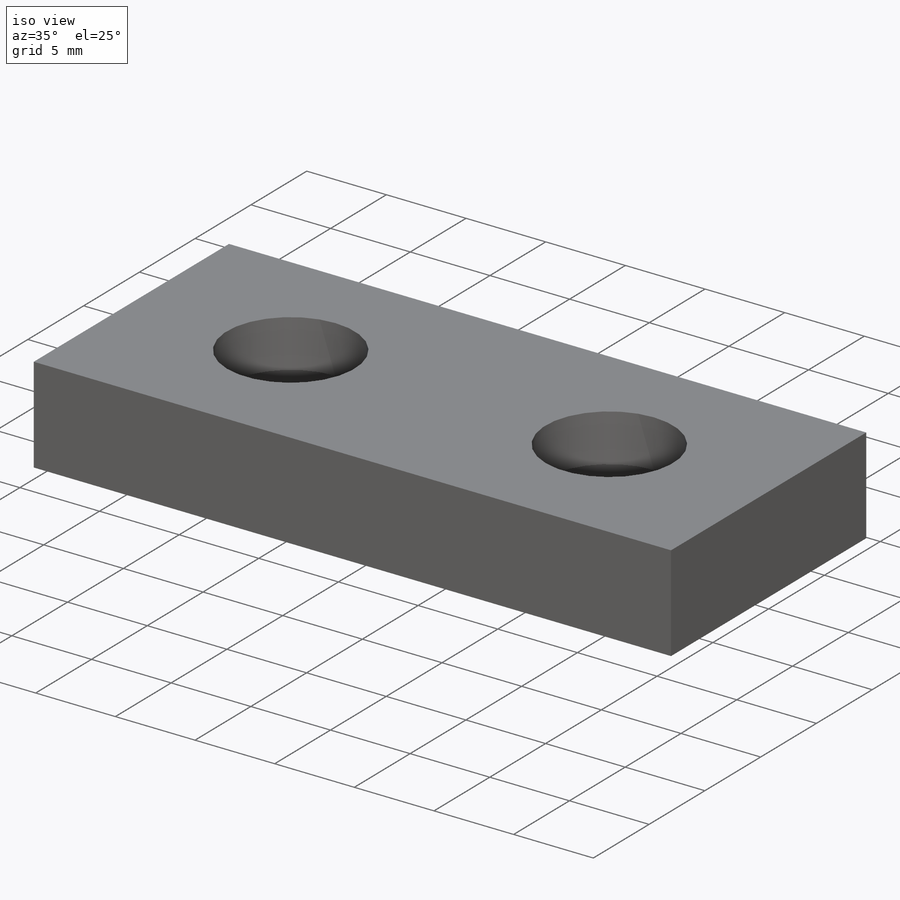
[diagram: iso view]
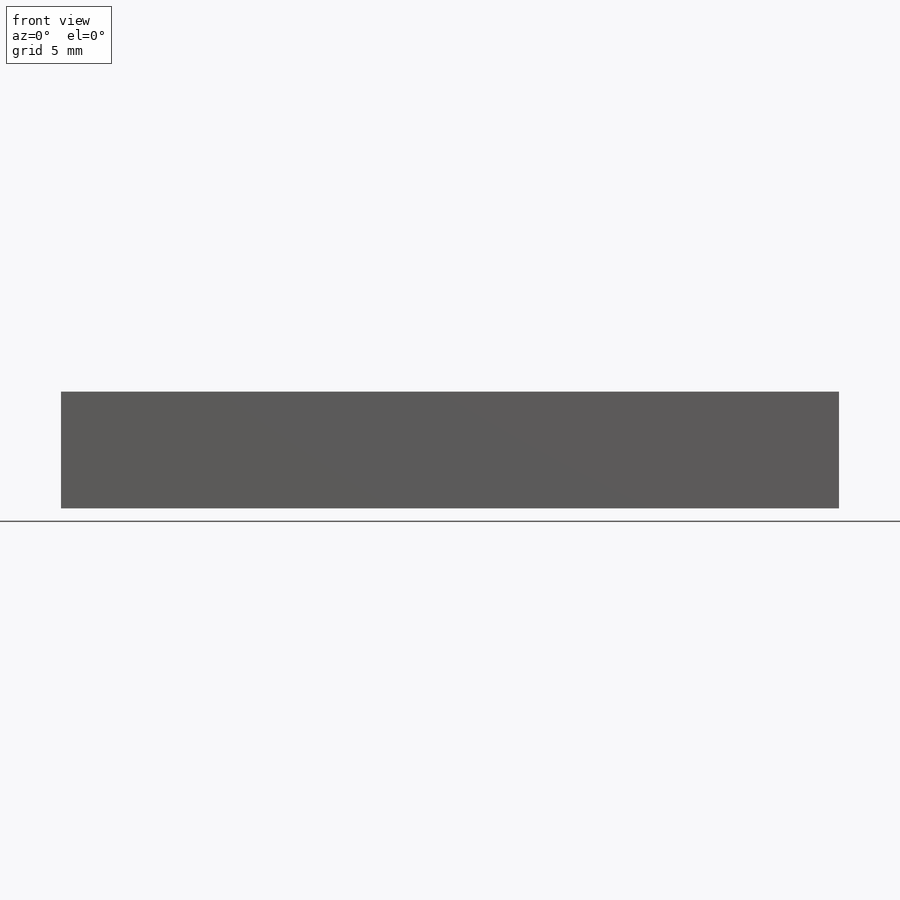
[diagram: front view]
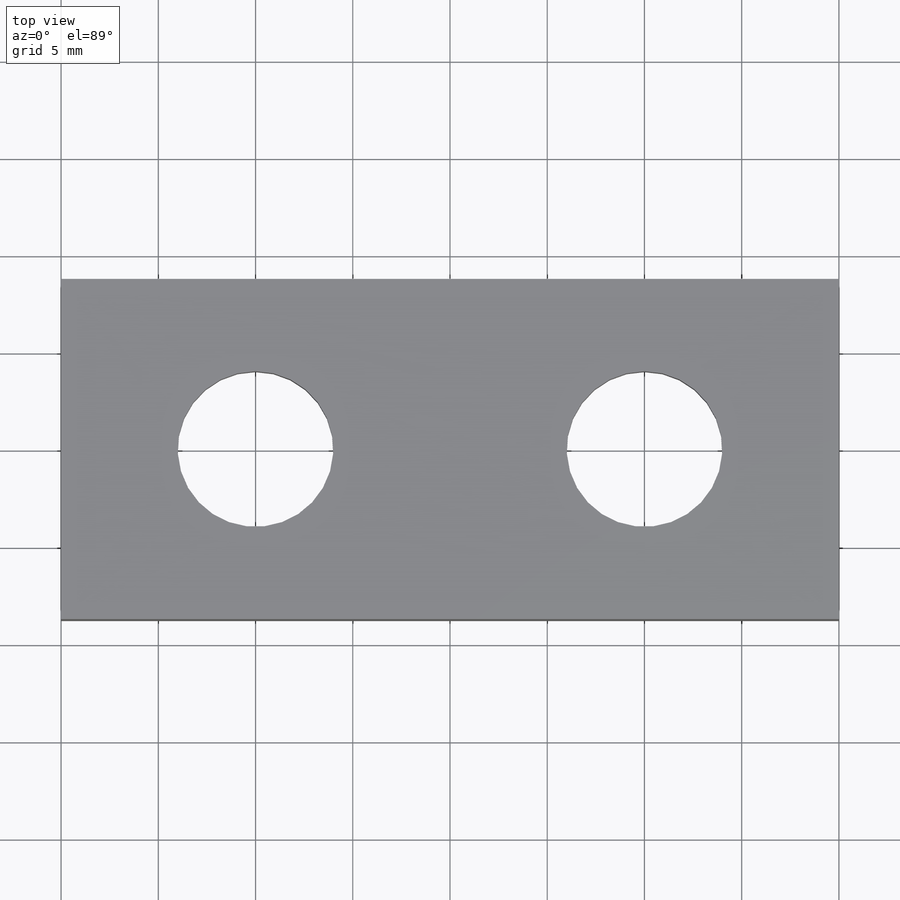
[diagram: top view]
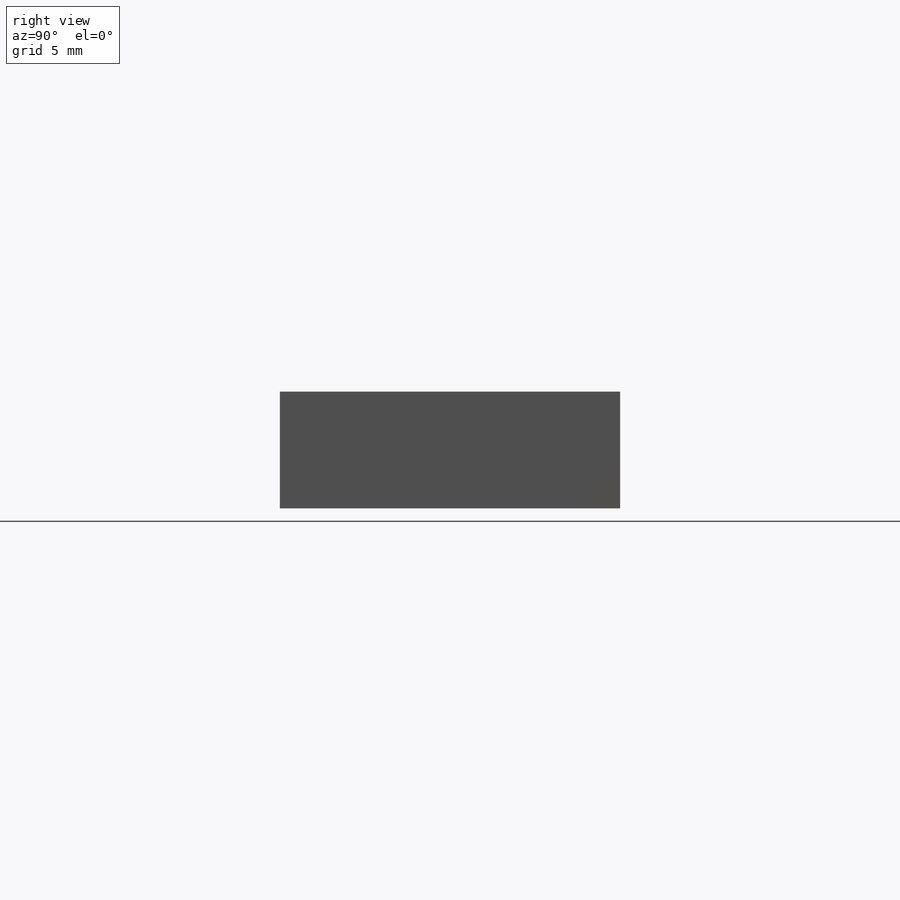
[diagram: right view]
SOLIDWORKS PART (.sldprt)
format: sldprt  version: not decoded by parser v0  size: 126,464 bytes
history: native  units: mm
features: sketch x3, cut_extrude x2, material x1, extrude x1, mirror x1 (+14 scaffold rows collapsed)
feature tree (22):
  scaffold x14  (default folders/planes/origin — collapsed)
  material  "Material <not specified>"
  sketch  "Sketch5"  dims[D1=17.5mm]
  extrude  "Extrude8"  Depth=6mm
  sketch  "Sketch7"  dims[D1=10.0mm]
  cut_extrude  "Extrude9"  Depth=3mm
  sketch  "Sketch8"  dims[D1=~3.992817mm]
  cut_extrude  "Extrude10"  Depth=3mm
  mirror  "Mirror2"
decode coverage: 6 of 7 modeling features carry decoded parameters
note: ~ marks probable driven/reference dimensions
note: suppression state not decoded; provenance and decode notes live in map.json
